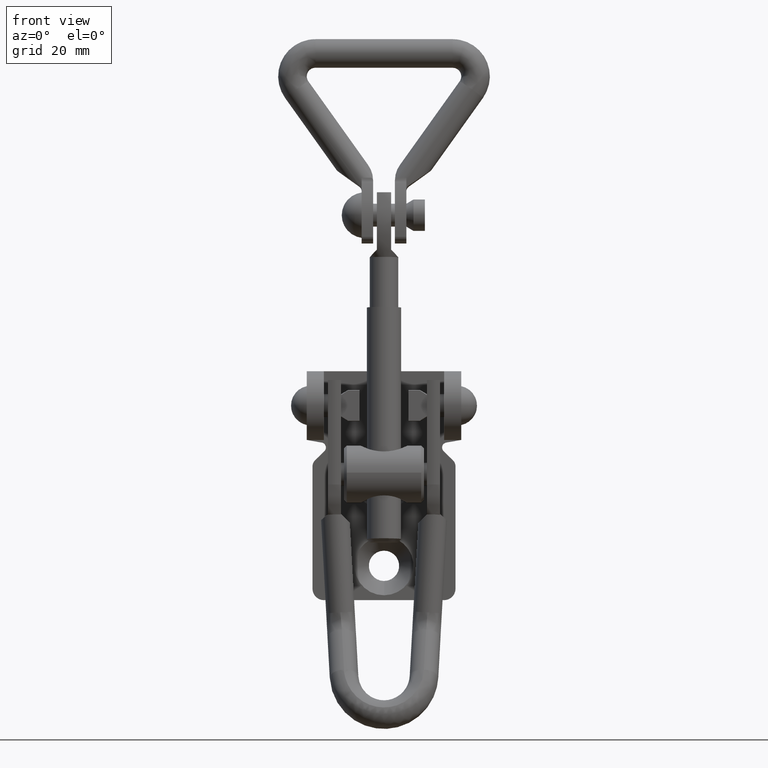
[diagram: clean part render]
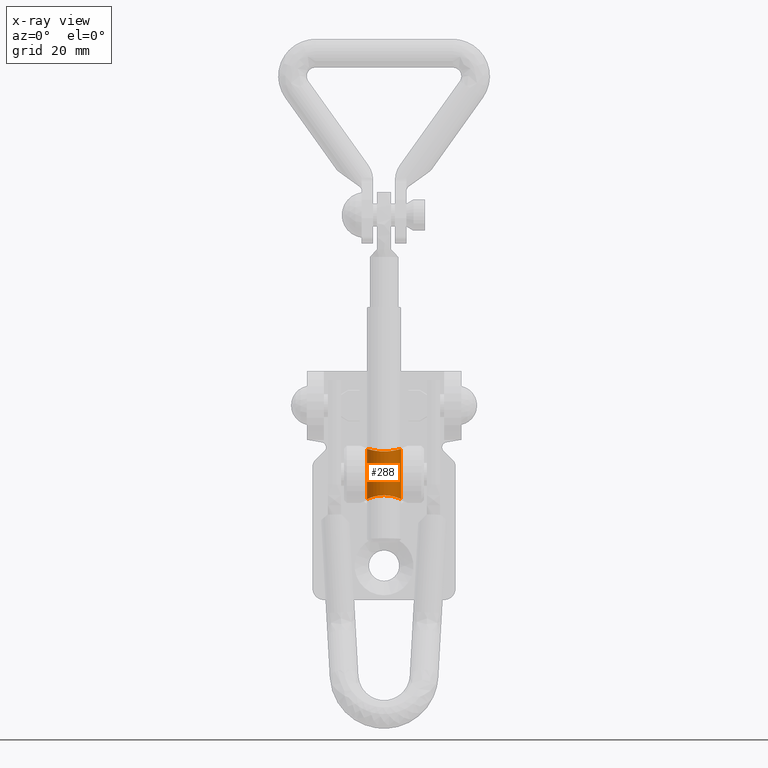
[diagram: x-ray — body ghosted, one internal face saturated and labeled with its STEP entity id]
A machine part, front view, then the same camera in x-ray: the body is ghosted and one INTERNAL B-rep face — a face not visible from any outside direction — is saturated and labeled: STEP entity #288.
In plain terms, the highlighted cylindrical surface (edge-blend (fillet) strip) has radius 3 mm, axis along (0, -0.0488, -0.9988).
Its self-contained STEP definition (entity closure, byte-faithful):
#288=ADVANCED_FACE('',(#1082),#1081,.F.);
#1081=CYLINDRICAL_SURFACE('',#2928,3.00000000000E+00);
#1082=FACE_OUTER_BOUND('',#2929,.T.);
#2925=CARTESIAN_POINT('',(9.80000000000E+00,0.00000000000E+00,-9.95000000000E+02));
#2926=DIRECTION('',(-0.00000000000E+00,0.00000000000E+00,-1.00000000000E+00));
#2927=DIRECTION('',(1.00000000000E+00,1.22464679915E-16,0.00000000000E+00));
#2928=AXIS2_PLACEMENT_3D('',#2925,#2926,#2927);
#2929=EDGE_LOOP('',(#4399,#4400,#4401,#4402));
#4399=ORIENTED_EDGE('',*,*,#5162,.T.);
#4400=ORIENTED_EDGE('',*,*,#5197,.T.);
#4401=ORIENTED_EDGE('',*,*,#5166,.T.);
#4402=ORIENTED_EDGE('',*,*,#5198,.F.);
#5162=EDGE_CURVE('',#6331,#6332,#6333,.T.);
#5166=EDGE_CURVE('',#6353,#6352,#6360,.T.);
#5197=EDGE_CURVE('',#6332,#6353,#6566,.T.);
#5198=EDGE_CURVE('',#6331,#6352,#6572,.T.);
#6331=VERTEX_POINT('',#9384);
#6332=VERTEX_POINT('',#9385);
#6333=(BOUNDED_CURVE() B_SPLINE_CURVE(3,(#9386,#9387,#9388,#9389,#9390,#9391,#9392,#9393,#9394,#9395,#9396,#9397,#9398,#9399,#9400,#9401,#9402,#9403,#9404,#9405,#9406,#9407,#9408,#9409,#9410,#9411,#9412,#9413,#9414,#9415,#9416,#9417,#9418,#9419),.UNSPECIFIED.,.F.,.F.) B_SPLINE_CURVE_WITH_KNOTS((4,2,2,2,2,2,2,2,2,2,2,2,2,2,2,2,4),(9.46149665976E-03,1.00568956816E-02,1.06484777805E-02,1.12400598795E-02,1.18316419784E-02,1.24232240773E-02,1.30148061762E-02,1.36063882751E-02,1.41979703740E-02,1.47895524730E-02,1.53811345719E-02,1.59727166708E-02,1.65642987697E-02,1.71558808686E-02,1.77474629676E-02,1.83390450665E-02,1.89306271654E-02),.UNSPECIFIED.) CURVE() GEOMETRIC_REPRESENTATION_ITEM() RATIONAL_B_SPLINE_CURVE((1.00000000000E+00,1.00000000000E+00,1.00000000000E+00,1.00000000000E+00,1.00000000000E+00,1.00000000000E+00,1.00000000000E+00,1.00000000000E+00,1.00000000000E+00,1.00000000000E+00,1.00000000000E+00,1.00000000000E+00,1.00000000000E+00,1.00000000000E+00,1.00000000000E+00,1.00000000000E+00,1.00000000000E+00,1.00000000000E+00,1.00000000000E+00,1.00000000000E+00,1.00000000000E+00,1.00000000000E+00,1.00000000000E+00,1.00000000000E+00,1.00000000000E+00,1.00000000000E+00,1.00000000000E+00,1.00000000000E+00,1.00000000000E+00,1.00000000000E+00,1.00000000000E+00,1.00000000000E+00,1.00000000000E+00,1.00000000000E+00)) REPRESENTATION_ITEM('') );
#6352=VERTEX_POINT('',#9523);
#6353=VERTEX_POINT('',#9524);
#6360=(BOUNDED_CURVE() B_SPLINE_CURVE(3,(#9559,#9560,#9561,#9562,#9563,#9564,#9565,#9566,#9567,#9568,#9569,#9570,#9571,#9572,#9573,#9574,#9575,#9576,#9577,#9578,#9579,#9580,#9581,#9582,#9583,#9584,#9585,#9586,#9587,#9588,#9589,#9590),.UNSPECIFIED.,.F.,.F.) B_SPLINE_CURVE_WITH_KNOTS((4,2,2,2,2,2,2,2,2,2,2,2,2,2,2,4),(0.00000000000E+00,5.91582098919E-04,1.18316419784E-03,1.77474629676E-03,2.36632839567E-03,3.54949259351E-03,4.14107469243E-03,4.73265679135E-03,5.32423889027E-03,5.91582098919E-03,6.50740308810E-03,7.09898518702E-03,7.69056728594E-03,8.28214938486E-03,8.87373148378E-03,9.46149665976E-03),.UNSPECIFIED.) CURVE() GEOMETRIC_REPRESENTATION_ITEM() RATIONAL_B_SPLINE_CURVE((1.00000000000E+00,1.00000000000E+00,1.00000000000E+00,1.00000000000E+00,1.00000000000E+00,1.00000000000E+00,1.00000000000E+00,1.00000000000E+00,1.00000000000E+00,1.00000000000E+00,1.00000000000E+00,1.00000000000E+00,1.00000000000E+00,1.00000000000E+00,1.00000000000E+00,1.00000000000E+00,1.00000000000E+00,1.00000000000E+00,1.00000000000E+00,1.00000000000E+00,1.00000000000E+00,1.00000000000E+00,1.00000000000E+00,1.00000000000E+00,1.00000000000E+00,1.00000000000E+00,1.00000000000E+00,1.00000000000E+00,1.00000000000E+00,1.00000000000E+00,1.00000000000E+00,1.00000000000E+00)) REPRESENTATION_ITEM('') );
#6566=(BOUNDED_CURVE() B_SPLINE_CURVE(1,(#9707,#9708),.UNSPECIFIED.,.F.,.F.) B_SPLINE_CURVE_WITH_KNOTS((2,2),(8.33359152072E-02,9.16664082036E-01),.UNSPECIFIED.) CURVE() GEOMETRIC_REPRESENTATION_ITEM() RATIONAL_B_SPLINE_CURVE((1.00000000000E+00,1.00000000000E+00)) REPRESENTATION_ITEM('') );
#6572=(BOUNDED_CURVE() B_SPLINE_CURVE(1,(#9709,#9710),.UNSPECIFIED.,.F.,.F.) B_SPLINE_CURVE_WITH_KNOTS((2,2),(8.33359882646E-02,9.16664011735E-01),.UNSPECIFIED.) CURVE() GEOMETRIC_REPRESENTATION_ITEM() RATIONAL_B_SPLINE_CURVE((7.50000000000E-01,7.50000000000E-01)) REPRESENTATION_ITEM('') );
#9384=CARTESIAN_POINT('',(6.80000393861E+00,4.84997633773E-03,4.42320777779E+00));
#9385=CARTESIAN_POINT('',(1.28000000000E+01,-2.77555756156E-17,4.42320938201E+00));
#9386=CARTESIAN_POINT('',(6.80000061698E+00,2.30633259867E-03,4.42320913243E+00));
#9387=CARTESIAN_POINT('',(6.79993220350E+00,-1.96070519789E-01,4.42323680704E+00));
#9388=CARTESIAN_POINT('',(6.81955817675E+00,-3.95376899908E-01,4.41520918895E+00));
#9389=CARTESIAN_POINT('',(6.89757459581E+00,-7.84399852034E-01,4.38436351797E+00));
#9390=CARTESIAN_POINT('',(6.95507438728E+00,-9.72074398050E-01,4.36191712888E+00));
#9391=CARTESIAN_POINT('',(7.10599406877E+00,-1.33448957276E+00,4.30622782648E+00));
#9392=CARTESIAN_POINT('',(7.20010474677E+00,-1.50942748998E+00,4.27280094754E+00));
#9393=CARTESIAN_POINT('',(7.41676186031E+00,-1.83248537370E+00,4.20179229860E+00));
#9394=CARTESIAN_POINT('',(7.53998827940E+00,-1.98264139149E+00,4.16392317408E+00));
#9395=CARTESIAN_POINT('',(7.81756102424E+00,-2.26018927788E+00,4.08759169558E+00));
#9396=CARTESIAN_POINT('',(7.96789303226E+00,-2.38350749214E+00,4.05027480231E+00));
#9397=CARTESIAN_POINT('',(8.29052618726E+00,-2.59984859463E+00,3.98137384766E+00));
#9398=CARTESIAN_POINT('',(8.46498967588E+00,-2.69379198938E+00,3.94944668273E+00));
#9399=CARTESIAN_POINT('',(8.82852202106E+00,-2.84517106410E+00,3.89648834135E+00));
#9400=CARTESIAN_POINT('',(9.01592742860E+00,-2.90242018921E+00,3.87556823419E+00));
#9401=CARTESIAN_POINT('',(9.40222711389E+00,-2.98003179228E+00,3.84695591373E+00));
#9402=CARTESIAN_POINT('',(9.60317032579E+00,-3.00005930934E+00,3.83938562811E+00));
#9403=CARTESIAN_POINT('',(9.99863348036E+00,-2.99994041952E+00,3.83943021179E+00));
#9404=CARTESIAN_POINT('',(1.01949348074E+01,-2.98052389634E+00,3.84677353203E+00));
#9405=CARTESIAN_POINT('',(1.05846508382E+01,-2.90238165320E+00,3.87558339776E+00));
#9406=CARTESIAN_POINT('',(1.07746893963E+01,-2.84399796812E+00,3.89690620644E+00));
#9407=CARTESIAN_POINT('',(1.11361110532E+01,-2.69316748746E+00,3.94965759838E+00));
#9408=CARTESIAN_POINT('',(1.13106947484E+01,-2.59924923129E+00,3.98158424645E+00));
#9409=CARTESIAN_POINT('',(1.16355571455E+01,-2.38097147294E+00,4.05106268714E+00));
#9410=CARTESIAN_POINT('',(1.17852580403E+01,-2.25756483384E+00,4.08833820483E+00));
#9411=CARTESIAN_POINT('',(1.20602056048E+01,-1.98225101580E+00,4.16400553105E+00));
#9412=CARTESIAN_POINT('',(1.21856332405E+01,-1.82934585563E+00,4.20254476316E+00));
#9413=CARTESIAN_POINT('',(1.24016734426E+01,-1.50633579117E+00,4.27341689930E+00));
#9414=CARTESIAN_POINT('',(1.24938472994E+01,-1.33493962935E+00,4.30616750883E+00));
#9415=CARTESIAN_POINT('',(1.26453953603E+01,-9.70877093101E-01,4.36209225175E+00));
#9416=CARTESIAN_POINT('',(1.27032117976E+01,-7.80888540255E-01,4.38467298870E+00));
#9417=CARTESIAN_POINT('',(1.27801416420E+01,-3.96461155033E-01,4.41509196309E+00));
#9418=CARTESIAN_POINT('',(1.28000000000E+01,-2.00193903742E-01,4.42320938201E+00));
#9419=CARTESIAN_POINT('',(1.28000000000E+01,-1.11022302463E-16,4.42320938201E+00));
#9523=CARTESIAN_POINT('',(6.80000393861E+00,-4.84997633773E-03,-4.42320777779E+00));
#9524=CARTESIAN_POINT('',(1.28000000000E+01,2.77555756156E-17,-4.42320938201E+00));
#9559=CARTESIAN_POINT('',(1.28000000000E+01,2.77555756156E-17,-4.42320938201E+00));
#9560=CARTESIAN_POINT('',(1.28000000000E+01,-2.00193903742E-01,-4.42320938201E+00));
#9561=CARTESIAN_POINT('',(1.27801661629E+01,-3.96636428819E-01,-4.41510060741E+00));
#9562=CARTESIAN_POINT('',(1.27028365336E+01,-7.82464615342E-01,-4.38452566120E+00));
#9563=CARTESIAN_POINT('',(1.26443056865E+01,-9.73880842212E-01,-4.36168015963E+00));
#9564=CARTESIAN_POINT('',(1.24931822151E+01,-1.33614680687E+00,-4.30593217114E+00));
#9565=CARTESIAN_POINT('',(1.24009816121E+01,-1.50767092005E+00,-4.27316731219E+00));
#9566=CARTESIAN_POINT('',(1.21834497996E+01,-1.83230565204E+00,-4.20185141665E+00));
#9567=CARTESIAN_POINT('',(1.20582672500E+01,-1.98438179041E+00,-4.16344403029E+00));
#9568=CARTESIAN_POINT('',(1.16472324782E+01,-2.39539149647E+00,-4.05040925051E+00));
#9569=CARTESIAN_POINT('',(1.13156446957E+01,-2.61827419182E+00,-3.97585214591E+00));
#9570=CARTESIAN_POINT('',(1.07749768919E+01,-2.84386263857E+00,-3.89695283781E+00));
#9571=CARTESIAN_POINT('',(1.05839517323E+01,-2.90251797384E+00,-3.87553309089E+00));
#9572=CARTESIAN_POINT('',(1.01957462942E+01,-2.98036504100E+00,-3.84683214709E+00));
#9573=CARTESIAN_POINT('',(9.99979687353E+00,-2.99986786086E+00,-3.83945742128E+00));
#9574=CARTESIAN_POINT('',(9.60419123150E+00,-3.00013081373E+00,-3.83935881397E+00));
#9575=CARTESIAN_POINT('',(9.40343201562E+00,-2.98019752084E+00,-3.84689387522E+00));
#9576=CARTESIAN_POINT('',(9.01695031944E+00,-2.90270160838E+00,-3.87546542165E+00));
#9577=CARTESIAN_POINT('',(8.82887489287E+00,-2.84537942678E+00,-3.89641823762E+00));
#9578=CARTESIAN_POINT('',(8.46304850148E+00,-2.69292197189E+00,-3.94974824716E+00));
#9579=CARTESIAN_POINT('',(8.29079860712E+00,-2.60003460950E+00,-3.98131490195E+00));
#9580=CARTESIAN_POINT('',(7.96754947617E+00,-2.38327377625E+00,-4.05034893991E+00));
#9581=CARTESIAN_POINT('',(7.81492320214E+00,-2.25772863350E+00,-4.08829093674E+00));
#9582=CARTESIAN_POINT('',(7.53988528978E+00,-1.98235969808E+00,-4.16397790790E+00));
#9583=CARTESIAN_POINT('',(7.41692152131E+00,-1.83274248092E+00,-4.20173853289E+00));
#9584=CARTESIAN_POINT('',(7.19976326240E+00,-1.50889924958E+00,-4.27291430647E+00));
#9585=CARTESIAN_POINT('',(7.10578595004E+00,-1.33391618676E+00,-4.30630652248E+00));
#9586=CARTESIAN_POINT('',(6.95561650740E+00,-9.73449683999E-01,-4.36171519071E+00));
#9587=CARTESIAN_POINT('',(6.89804690899E+00,-7.86219328358E-01,-4.38417868391E+00));
#9588=CARTESIAN_POINT('',(6.81970966660E+00,-3.96663715716E-01,-4.41514740257E+00));
#9589=CARTESIAN_POINT('',(6.80006815330E+00,-1.98139717060E-01,-4.42318181265E+00));
#9590=CARTESIAN_POINT('',(6.80000061698E+00,-2.30633259867E-03,-4.42320913243E+00));
#9707=CARTESIAN_POINT('',(1.28000000000E+01,3.67394039744E-16,4.42320939847E+00));
#9708=CARTESIAN_POINT('',(1.28000000000E+01,3.67394039744E-16,-4.42320936921E+00));
#9709=CARTESIAN_POINT('',(6.80000000000E+00,0.00000000000E+00,4.42320862291E+00));
#9710=CARTESIAN_POINT('',(6.80000000000E+00,0.00000000000E+00,-4.42320862291E+00));